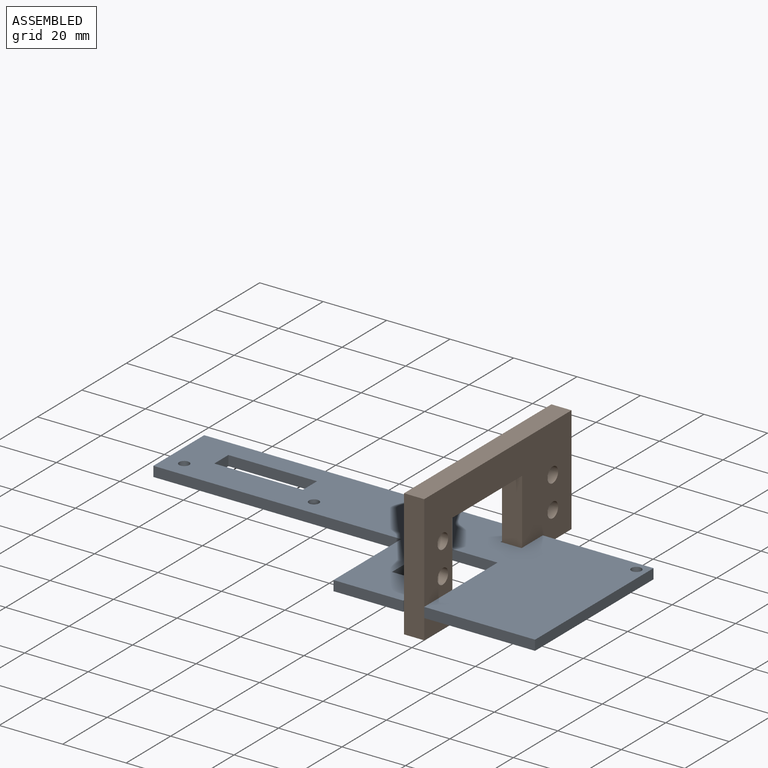
[diagram: assembled view]
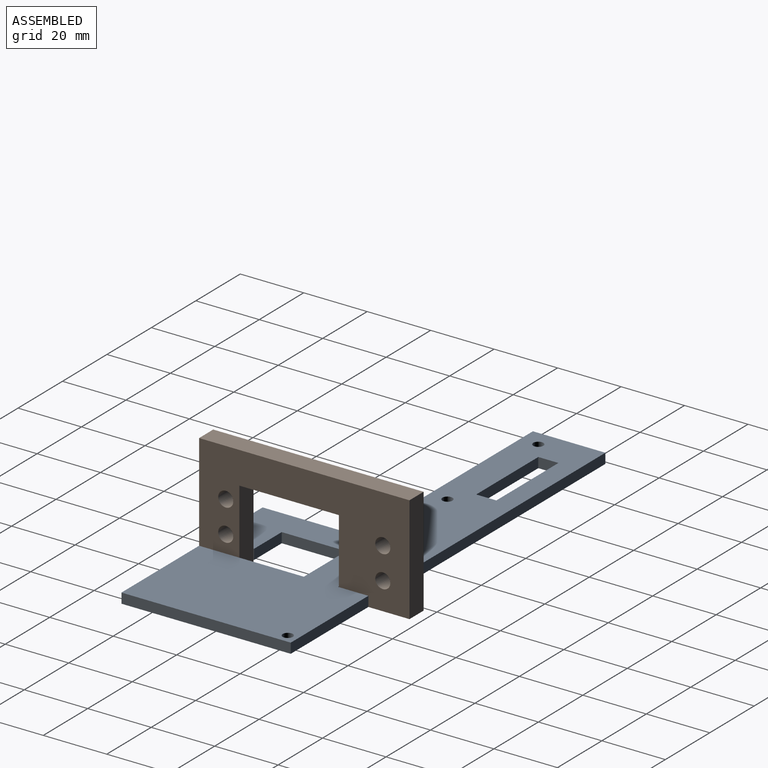
[diagram: assembled view, second angle]
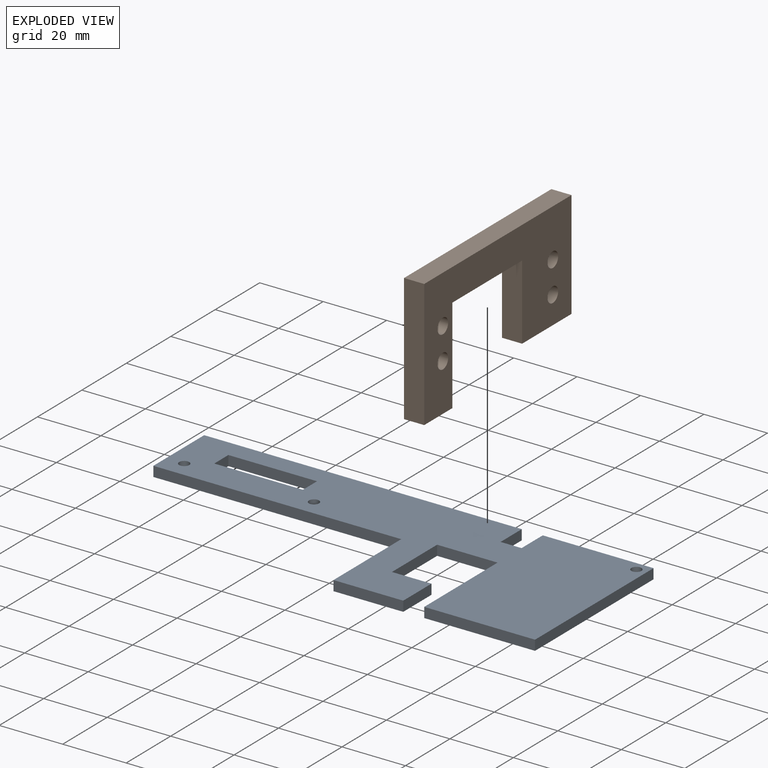
[diagram: exploded view]
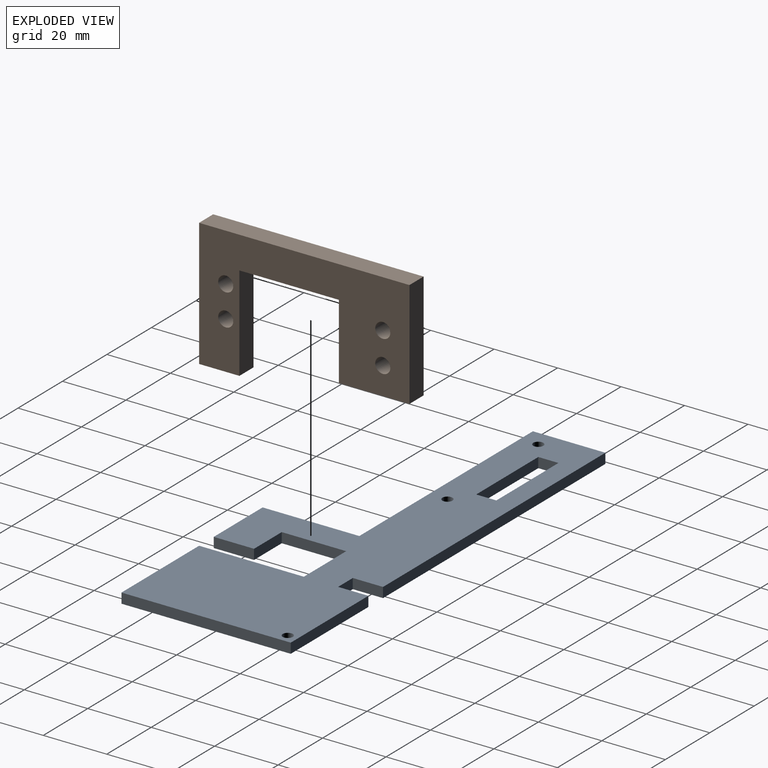
[diagram: exploded view, second angle]
ASSEMBLY  parts=2 mates=3
PART A: 25 faces, bbox 141.6x53.3x3.2 mm
  f0: plane 27.94x3.18mm, normal (0,1,0), area 88.7mm2, adj f1,f22,f23,f24
  f1: plane 6.35x3.18mm, normal (1,0,0), area 20.2mm2, adj f0,f2,f23,f24
  f2: plane 27.94x3.18mm, normal (0,-1,0), area 88.7mm2, adj f1,f22,f23,f24
  f3: plane 9.53x3.18mm, normal (-1,0,0), area 30.2mm2, adj f4,f21,f23,f24
  f4: plane 100.08x3.18mm, normal (0,-1,0), area 317.7mm2, adj f3,f5,f23,f24
  f5: plane 22.86x3.18mm, normal (1,0,0), area 72.6mm2, adj f4,f6,f23,f24
  f6: plane 78.11x3.18mm, normal (0,1,0), area 248mm2, adj f5,f7,f23,f24
  f7: plane 30.48x3.18mm, normal (1,0,0), area 96.8mm2, adj f6,f8,f23,f24
  f8: plane 21.97x3.18mm, normal (0,1,0), area 69.8mm2, adj f7,f9,f23,f24
  f9: plane 12.7x3.18mm, normal (-1,0,0), area 40.3mm2, adj f8,f10,f23,f24
  f10: plane 12.45x3.18mm, normal (0,-1,0), area 39.5mm2, adj f9,f11,f23,f24
  f11: plane 20.32x3.18mm, normal (-1,0,0), area 64.5mm2, adj f10,f12,f23,f24
  f12: plane 19.05x3.18mm, normal (0,1,0), area 60.5mm2, adj f11,f13,f23,f24
  f13: plane 33.02x3.18mm, normal (1,0,0), area 104.8mm2, adj f12,f14,f23,f24
  f14: plane 34.93x3.18mm, normal (0,1,0), area 110.9mm2, adj f13,f15,f23,f24
  f15: plane 53.34x3.18mm, normal (-1,0,0), area 169.4mm2, adj f14,f16,f23,f24
  f16: plane 34.93x3.18mm, normal (0,-1,0), area 110.9mm2, adj f15,f17,f23,f24
  f17: plane 9.53x3.18mm, normal (1,0,0), area 30.2mm2, adj f16,f21,f23,f24
  f18: cylinder r=1.59mm len=3.18mm, axis (0,0,-1), area 31.7mm2, adj f23,f24
  f19: cylinder r=1.59mm len=3.18mm, axis (0,0,-1), area 31.7mm2, adj f23,f24
  f20: cylinder r=1.59mm len=3.18mm, axis (0,0,-1), area 31.7mm2, adj f23,f24
  f21: plane 6.6x3.18mm, normal (0,-1,0), area 21mm2, adj f3,f17,f23,f24
  f22: plane 6.35x3.18mm, normal (-1,0,0), area 20.2mm2, adj f0,f2,f23,f24
  f23: plane 141.61x53.34mm, normal (0,0,1), area 4437.5mm2, adj f0,f1,f2,f3,f4,f5,f6,f7
  f24: plane 141.61x53.34mm, normal (0,0,-1), area 4437.5mm2, adj f0,f1,f2,f3,f4,f5,f6,f7
PART B: 14 faces, bbox 40.2x66.3x6.4 mm
  f0: plane 30.03x6.35mm, normal (0,-1,0), area 190.7mm2, adj f1,f10,f12,f13
  f1: plane 31.37x6.35mm, normal (-1,0,0), area 199.2mm2, adj f0,f2,f12,f13
  f2: plane 23.68x6.35mm, normal (0,1,0), area 150.4mm2, adj f1,f3,f12,f13
  f3: plane 22.23x6.35mm, normal (-1,0,0), area 141.1mm2, adj f2,f4,f12,f13
  f4: plane 33.84x6.35mm, normal (0,-1,0), area 214.9mm2, adj f3,f5,f12,f13
  f5: plane 66.29x6.35mm, normal (1,0,0), area 421mm2, adj f4,f6,f12,f13
  f6: plane 40.19x6.35mm, normal (0,1,0), area 255.2mm2, adj f5,f10,f12,f13
  f7: cylinder r=2.38mm len=6.35mm, axis (0,0,-1), area 95mm2, adj f12,f13
  f8: cylinder r=2.38mm len=6.35mm, axis (0,0,-1), area 95mm2, adj f12,f13
  f9: cylinder r=2.38mm len=6.35mm, axis (0,0,-1), area 95mm2, adj f12,f13
  f10: plane 12.7x6.35mm, normal (-1,0,0), area 80.6mm2, adj f0,f6,f12,f13
  f11: cylinder r=2.38mm len=6.35mm, axis (0,0,-1), area 95mm2, adj f12,f13
  f12: plane 66.29x40.19mm, normal (0,0,1), area 1510.1mm2, adj f0,f1,f2,f3,f4,f5,f6,f7
  f13: plane 66.29x40.19mm, normal (0,0,-1), area 1510.1mm2, adj f0,f1,f2,f3,f4,f5,f6,f7
PLACE A rot(axis=(0,0,1),180deg) t=(-43.63,54.56,-5.45)mm
PLACE B rot(axis=(0.71,0,0.71),180deg) t=(16.69,67.51,-5.45)mm
MATE planar B.f3 <-> A.f24  axis (0,0,-1) through (19.87,56.4,-5.45)mm
MATE planar B.f0 <-> A.f10  axis (0,1,0) through (19.87,13.92,3.21)mm
MATE planar B.f12 <-> A.f13  axis (1,0,0) through (23.04,1.22,28.39)mm
